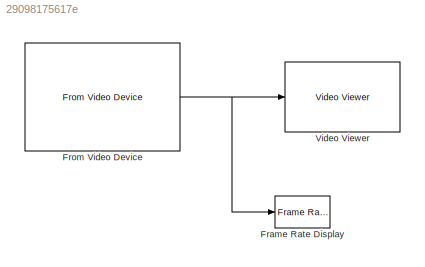
MODEL slx_29098175617e
KIND model
BLOCK [Reference] Frame Rate Display  REF=visionsinks/Frame Rate
Display
  Ports = [1]
  SourceBlock = visionsinks/Frame Rate\nDisplay
  SourceType = Frame Rate Display
  UpdateRate = 10
BLOCK [Reference] From Video Device  REF=imaqlib/From Video Device
  BayerSensorAlignment = grbg
  BlockHandle = 4.001
  CanDoHWTrigger = no
  DataType = single
  DevXMLPath = /Applications/MATLAB_R2012b.app/toolbox/imaq/imaqadaptors/maci64
  Device = macvideo 1 (Built-in iSight)
  DeviceMenu = macvideo 1 (Built-in iSight)
  EnableHWTrigger = off
  EngLibPath = /Applications/MATLAB_R2012b.app/toolbox/imaq/imaqblks/imaqmex/maci64
  EngXMLPath = /Applications/MATLAB_R2012b.app/toolbox/imaq/imaq/private
  ObjConstructor = videoinput('macvideo', 1)
  OutputPortsMode = One multidimensional signal
  Ports = [0, 1]
  ROIColumn = 0
  ROIHeight = 480
  ROIPosition = [0 0 480 640]
  ROIRow = 0
  ROIWidth = 640
  ReturnedColorSpace = rgb
  SampleTime = 1/30
  SourceBlock = imaqlib/From Video Device
  SourceType = From Video Device
  TriggerConfiguration = none/none
  UserDataPersistent = on
  VideoFormat = YCbCr422_640x480
  VideoFormatMenu = YCbCr422_640x480
  VideoSource = default
BLOCK [Reference] Video Viewer  REF=visionsinks/Video Viewer
  AxisZoom = on
  DefaultConfigurationName = vipscopes.VideoViewerScopeCfg
  FigPos = [104 578 410 300]
  OpenAtMdlStart = on
  Ports = [1]
  SourceBlock = visionsinks/Video Viewer
  SourceType = Video Viewer
  UserDataPersistent = on
  colormapValue = jet(256)
  imagePorts = One multidimensional signal
  inputType = Obsolete7b
  maxInputVal = 255
  minInputVal = 0
  specRange = off
  trueSizedOnce = off
  useColorMap = off
NET From Video Device:1 -> Frame Rate Display:1, Video Viewer:1
note: NET lines group one-source signal fan-out (src -> all destinations, sorted); 1:1 wires keep LINE
